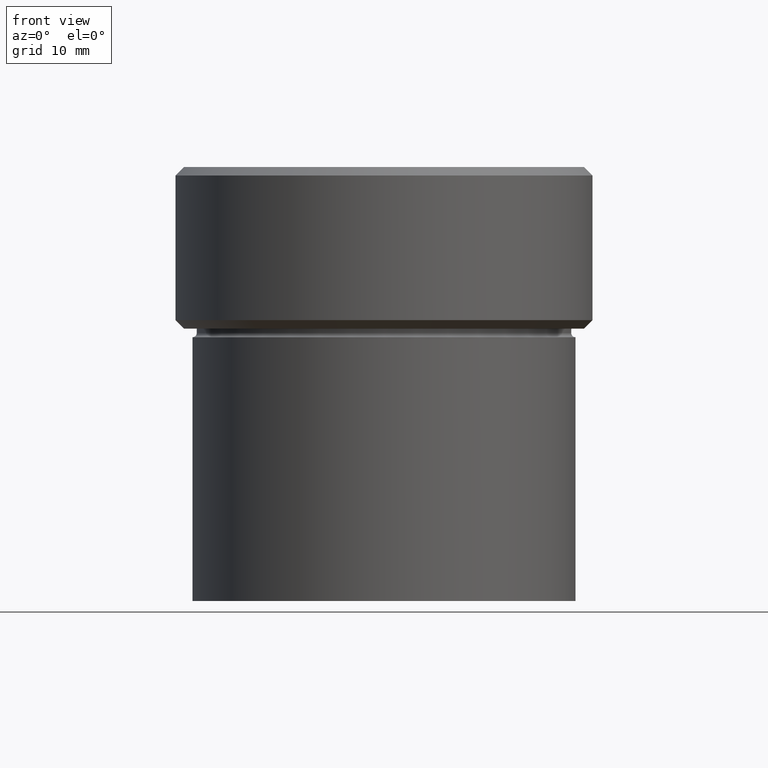
[diagram: clean part render]
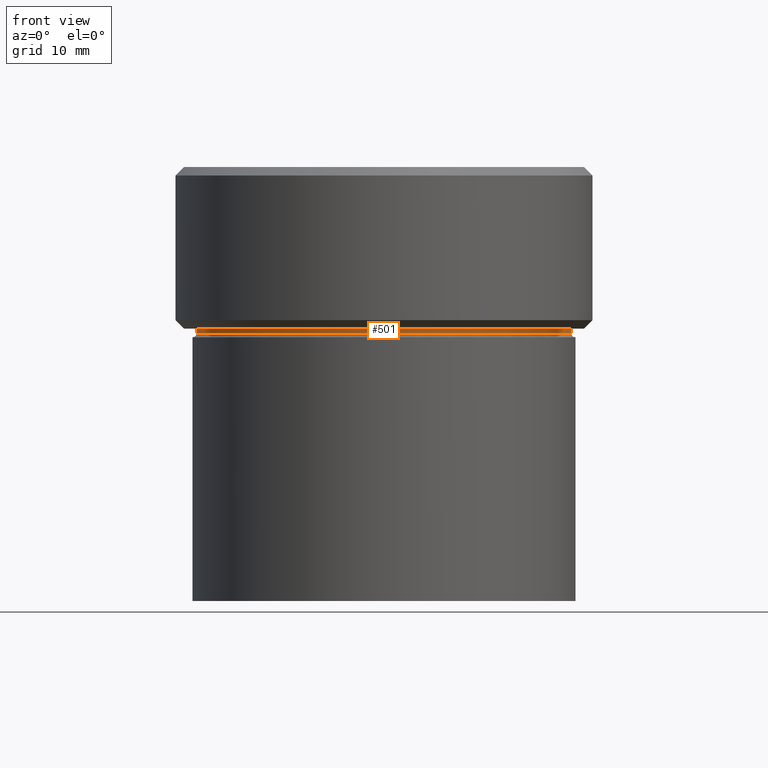
[diagram: same view with one face highlighted and labeled with its STEP entity id]
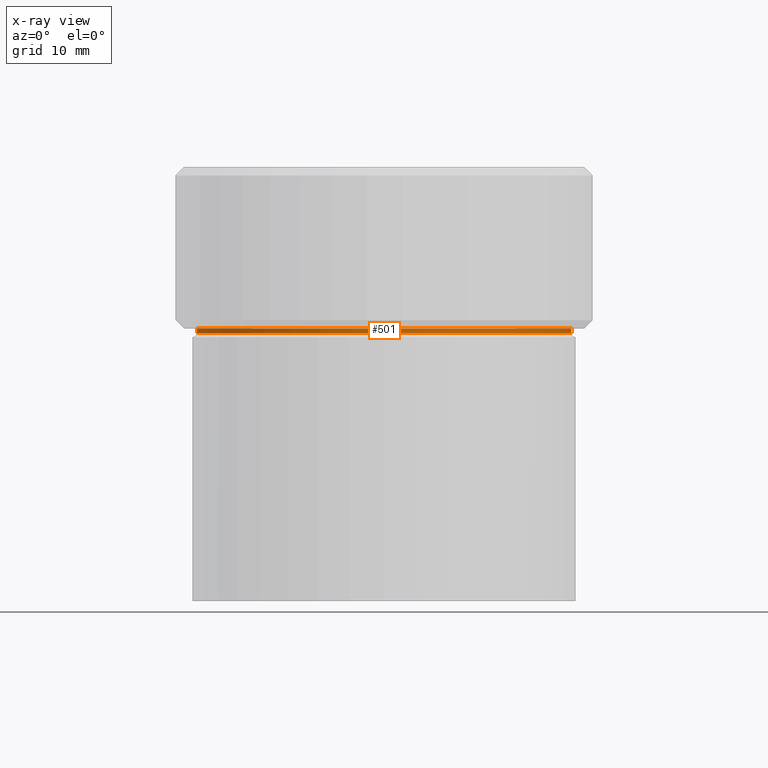
[diagram: x-ray of the same camera — body ghosted, the highlighted face saturated]
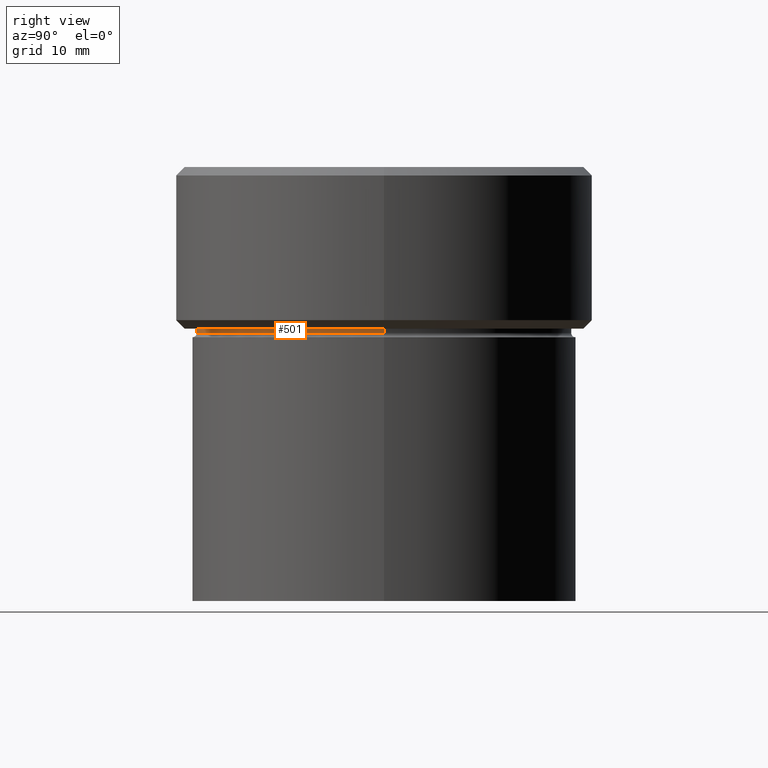
[diagram: same view with one face highlighted and labeled with its STEP entity id]
A machine part, front view. The second image highlights one B-rep face of the part: STEP entity #501.
The next image is the same camera in x-ray: the body ghosted, the highlighted face saturated — about 0% of this face is hidden behind the body in this view.
A second angle (right view) of the same face is appended — the face is thin or edge-on in the first view.
In plain terms, the highlighted cylindrical surface (partial cylindrical patch) has radius 22 mm, axis along (-0, -0, 1).
Its self-contained STEP definition (entity closure, byte-faithful):
#6 = EDGE_CURVE ( 'NONE', #525, #436, #317, .T. ) ;
#24 = CARTESIAN_POINT ( 'NONE',  ( 22.00000000000000000, 0.000000000000000000, -18.99999999999999645 ) ) ;
#28 = CARTESIAN_POINT ( 'NONE',  ( 0.000000000000000000, 0.000000000000000000, -19.49999999999999645 ) ) ;
#29 = VERTEX_POINT ( 'NONE', #361 ) ;
#31 = AXIS2_PLACEMENT_3D ( 'NONE', #28, #358, #242 ) ;
#44 = CARTESIAN_POINT ( 'NONE',  ( -22.00000000000000000, 2.694222958124176809E-15, -19.49999999999999645 ) ) ;
#55 = CIRCLE ( 'NONE', #31, 22.00000000000000000 ) ;
#77 = AXIS2_PLACEMENT_3D ( 'NONE', #227, #384, #141 ) ;
#78 = DIRECTION ( 'NONE',  ( -0.000000000000000000, -0.000000000000000000, 1.000000000000000000 ) ) ;
#113 = DIRECTION ( 'NONE',  ( -0.000000000000000000, -0.000000000000000000, 1.000000000000000000 ) ) ;
#118 = VERTEX_POINT ( 'NONE', #44 ) ;
#131 = ORIENTED_EDGE ( 'NONE', *, *, #376, .F. ) ;
#136 = VECTOR ( 'NONE', #78, 1000.000000000000000 ) ;
#141 = DIRECTION ( 'NONE',  ( 1.000000000000000000, 0.000000000000000000, 0.000000000000000000 ) ) ;
#165 = EDGE_LOOP ( 'NONE', ( #299, #452, #286, #131 ) ) ;
#188 = AXIS2_PLACEMENT_3D ( 'NONE', #455, #413, #370 ) ;
#190 = EDGE_CURVE ( 'NONE', #118, #29, #443, .T. ) ;
#227 = CARTESIAN_POINT ( 'NONE',  ( 0.000000000000000000, 0.000000000000000000, -18.99999999999999645 ) ) ;
#242 = DIRECTION ( 'NONE',  ( 1.000000000000000000, 0.000000000000000000, 0.000000000000000000 ) ) ;
#286 = ORIENTED_EDGE ( 'NONE', *, *, #6, .T. ) ;
#299 = ORIENTED_EDGE ( 'NONE', *, *, #190, .F. ) ;
#317 = LINE ( 'NONE', #324, #420 ) ;
#324 = CARTESIAN_POINT ( 'NONE',  ( 22.00000000000000000, 0.000000000000000000, 0.000000000000000000 ) ) ;
#358 = DIRECTION ( 'NONE',  ( -0.000000000000000000, -0.000000000000000000, 1.000000000000000000 ) ) ;
#361 = CARTESIAN_POINT ( 'NONE',  ( -22.00000000000000000, 2.694222958124176809E-15, -18.99999999999999645 ) ) ;
#370 = DIRECTION ( 'NONE',  ( 1.000000000000000000, 0.000000000000000000, 0.000000000000000000 ) ) ;
#376 = EDGE_CURVE ( 'NONE', #29, #436, #409, .T. ) ;
#384 = DIRECTION ( 'NONE',  ( -0.000000000000000000, -0.000000000000000000, 1.000000000000000000 ) ) ;
#409 = CIRCLE ( 'NONE', #77, 22.00000000000000000 ) ;
#411 = EDGE_CURVE ( 'NONE', #118, #525, #55, .T. ) ;
#413 = DIRECTION ( 'NONE',  ( -0.000000000000000000, -0.000000000000000000, 1.000000000000000000 ) ) ;
#420 = VECTOR ( 'NONE', #113, 1000.000000000000000 ) ;
#436 = VERTEX_POINT ( 'NONE', #24 ) ;
#443 = LINE ( 'NONE', #531, #136 ) ;
#446 = CYLINDRICAL_SURFACE ( 'NONE', #188, 22.00000000000000000 ) ;
#452 = ORIENTED_EDGE ( 'NONE', *, *, #411, .T. ) ;
#455 = CARTESIAN_POINT ( 'NONE',  ( 0.000000000000000000, 0.000000000000000000, 0.000000000000000000 ) ) ;
#491 = CARTESIAN_POINT ( 'NONE',  ( 22.00000000000000000, 0.000000000000000000, -19.49999999999999645 ) ) ;
#498 = FACE_OUTER_BOUND ( 'NONE', #165, .T. ) ;
#501 = ADVANCED_FACE ( 'NONE', ( #498 ), #446, .T. ) ;
#525 = VERTEX_POINT ( 'NONE', #491 ) ;
#531 = CARTESIAN_POINT ( 'NONE',  ( -22.00000000000000000, 2.694222958124176809E-15, 0.000000000000000000 ) ) ;